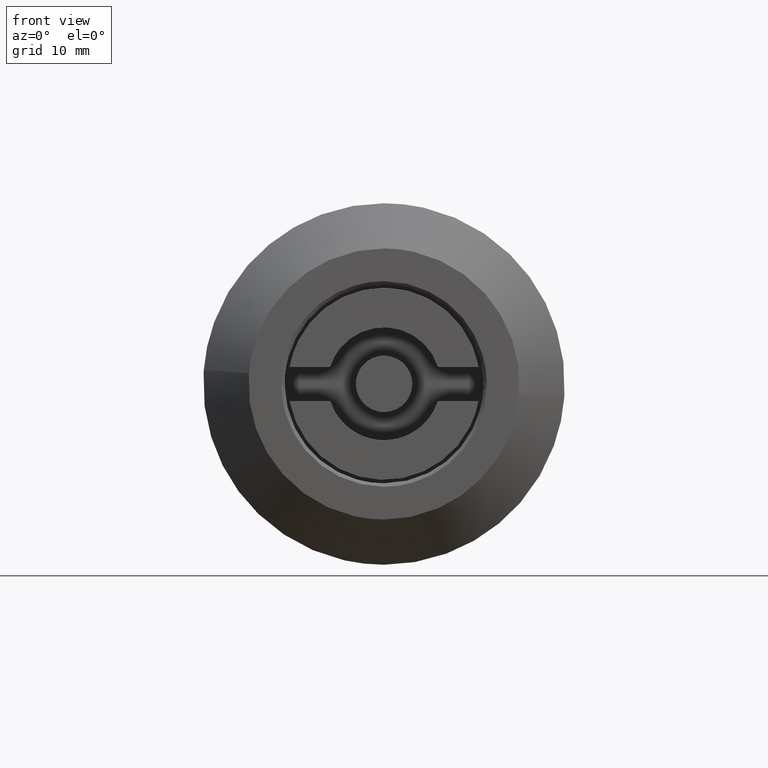
[diagram: clean part render]
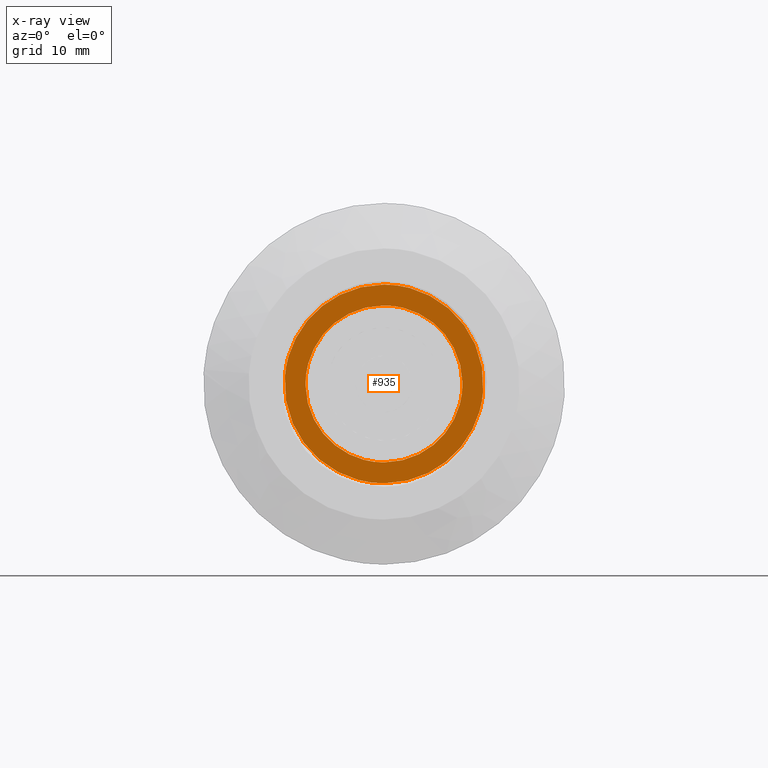
[diagram: x-ray — body ghosted, one internal face saturated and labeled with its STEP entity id]
A machine part, front view, then the same camera in x-ray: the body is ghosted and one INTERNAL B-rep face — a face not visible from any outside direction — is saturated and labeled: STEP entity #935.
In plain terms, the highlighted face is a freeform B-spline surface patch.
Its self-contained STEP definition (entity closure, byte-faithful):
#754=CARTESIAN_POINT('',(0.0,0.0,-8.800000000000029));
#755=VERTEX_POINT('',#754);
#756=CARTESIAN_POINT('',(8.772873521156672,8.937952E-013,-0.690427535394391));
#757=VERTEX_POINT('',#756);
#758=CARTESIAN_POINT('',(0.0,0.0,-8.800000000000029));
#759=CARTESIAN_POINT('',(8.134647959566470,4.466681E-013,-8.799999999999679));
#760=CARTESIAN_POINT('',(8.772873521156672,8.937952E-013,-0.690427535394391));
#768=(BOUNDED_CURVE()B_SPLINE_CURVE(2,(#758,#759,#760),.UNSPECIFIED.,.F.,.U.)B_SPLINE_CURVE_WITH_KNOTS((3,3),(0.0,0.236331545023443),.UNSPECIFIED.)CURVE()GEOMETRIC_REPRESENTATION_ITEM()RATIONAL_B_SPLINE_CURVE((1.0,0.723120372283709,0.969723866197073))REPRESENTATION_ITEM(''));
#769=EDGE_CURVE('',#755,#757,#768,.T.);
#778=CARTESIAN_POINT('',(-8.772873521156672,8.947993E-013,0.690427535394335));
#779=VERTEX_POINT('',#778);
#785=CARTESIAN_POINT('',(-8.772873521156672,8.947993E-013,0.690427535394335));
#786=CARTESIAN_POINT('',(-8.799999999991247,8.785617E-013,0.345746659141776));
#787=CARTESIAN_POINT('',(-8.799999999991423,8.609942E-013,-7.021683E-013));
#788=CARTESIAN_POINT('',(-8.799999999995880,4.138631E-013,-8.800000000000352));
#789=CARTESIAN_POINT('',(0.0,0.0,-8.800000000000029));
#797=(BOUNDED_CURVE()B_SPLINE_CURVE(2,(#785,#786,#787,#788,#789),.UNSPECIFIED.,.F.,.U.)B_SPLINE_CURVE_WITH_KNOTS((3,2,3),(0.736331545023443,0.750000000000000,1.0),.UNSPECIFIED.)CURVE()GEOMETRIC_REPRESENTATION_ITEM()RATIONAL_B_SPLINE_CURVE((0.969723866197073,0.983986408902838,1.0,0.707106781186548,1.0))REPRESENTATION_ITEM(''));
#798=EDGE_CURVE('',#779,#755,#797,.T.);
#821=CARTESIAN_POINT('',(0.0,0.0,8.799999999999972));
#822=VERTEX_POINT('',#821);
#823=CARTESIAN_POINT('',(8.772873521156672,8.937952E-013,-0.690427535394391));
#824=CARTESIAN_POINT('',(8.799999999991247,8.775530E-013,-0.345746659141832));
#825=CARTESIAN_POINT('',(8.799999999991423,8.599841E-013,6.461795E-013));
#826=CARTESIAN_POINT('',(8.799999999995880,4.128179E-013,8.800000000000296));
#827=CARTESIAN_POINT('',(0.0,0.0,8.799999999999972));
#835=(BOUNDED_CURVE()B_SPLINE_CURVE(2,(#823,#824,#825,#826,#827),.UNSPECIFIED.,.F.,.U.)B_SPLINE_CURVE_WITH_KNOTS((3,2,3),(0.236331545023443,0.250000000000000,0.500000000000000),.UNSPECIFIED.)CURVE()GEOMETRIC_REPRESENTATION_ITEM()RATIONAL_B_SPLINE_CURVE((0.969723866197073,0.983986408902838,1.0,0.707106781186548,1.0))REPRESENTATION_ITEM(''));
#836=EDGE_CURVE('',#757,#822,#835,.T.);
#838=CARTESIAN_POINT('',(0.0,0.0,8.799999999999972));
#839=CARTESIAN_POINT('',(-8.134647959566470,4.476291E-013,8.799999999999624));
#840=CARTESIAN_POINT('',(-8.772873521156672,8.947993E-013,0.690427535394335));
#848=(BOUNDED_CURVE()B_SPLINE_CURVE(2,(#838,#839,#840),.UNSPECIFIED.,.F.,.U.)B_SPLINE_CURVE_WITH_KNOTS((3,3),(0.500000000000000,0.736331545023443),.UNSPECIFIED.)CURVE()GEOMETRIC_REPRESENTATION_ITEM()RATIONAL_B_SPLINE_CURVE((1.0,0.723120372283709,0.969723866197073))REPRESENTATION_ITEM(''));
#849=EDGE_CURVE('',#822,#779,#848,.T.);
#858=CARTESIAN_POINT('',(-9.676434319644912,5.924911E-016,9.679119965887757));
#859=CARTESIAN_POINT('',(9.676434319644910,-5.924911E-016,9.679119965887757));
#860=CARTESIAN_POINT('',(-9.676434319644912,5.924911E-016,-9.679120437956600));
#861=CARTESIAN_POINT('',(9.676434319644910,-5.924911E-016,-9.679120437956600));
#862=B_SPLINE_SURFACE_WITH_KNOTS('',1,1,((#858,#860),(#859,#861)),.UNSPECIFIED.,.F.,.F.,.U.,(2,2),(2,2),(0.0,19.352868639289820),(0.0,19.358240403844359),.UNSPECIFIED.);
#863=ORIENTED_EDGE('',*,*,#798,.F.);
#864=ORIENTED_EDGE('',*,*,#849,.F.);
#865=ORIENTED_EDGE('',*,*,#836,.F.);
#866=ORIENTED_EDGE('',*,*,#769,.F.);
#867=EDGE_LOOP('',(#863,#864,#865,#866));
#868=FACE_OUTER_BOUND('',#867,.T.);
#869=CARTESIAN_POINT('',(0.0,0.0,-6.949964726600419));
#870=VERTEX_POINT('',#869);
#871=CARTESIAN_POINT('',(6.949725960741990,7.957114E-016,0.057608780142484));
#872=VERTEX_POINT('',#871);
#873=CARTESIAN_POINT('',(0.0,0.0,-6.949964726600419));
#874=CARTESIAN_POINT('',(6.949964726599358,1.800334E-016,-6.949964726600427));
#875=CARTESIAN_POINT('',(6.949964726598318,7.906561E-016,-4.410799E-014));
#876=CARTESIAN_POINT('',(6.949964726598313,7.931869E-016,0.028804884866753));
#877=CARTESIAN_POINT('',(6.949725960741990,7.957114E-016,0.057608780142484));
#885=(BOUNDED_CURVE()B_SPLINE_CURVE(2,(#873,#874,#875,#876,#877),.UNSPECIFIED.,.F.,.U.)B_SPLINE_CURVE_WITH_KNOTS((3,2,3),(0.500000000000000,0.750000000000000,0.751462829172280),.UNSPECIFIED.)CURVE()GEOMETRIC_REPRESENTATION_ITEM()RATIONAL_B_SPLINE_CURVE((1.0,0.707106781186548,1.0,0.998286189020626,0.996592434142824))REPRESENTATION_ITEM(''));
#886=EDGE_CURVE('',#870,#872,#885,.T.);
#887=ORIENTED_EDGE('',*,*,#886,.T.);
#888=CARTESIAN_POINT('',(0.0,0.0,6.949964726600362));
#889=VERTEX_POINT('',#888);
#890=CARTESIAN_POINT('',(6.949725960741990,7.957114E-016,0.057608780142484));
#891=CARTESIAN_POINT('',(6.892592741300087,1.885870E-016,6.949964726600356));
#892=CARTESIAN_POINT('',(0.0,0.0,6.949964726600362));
#900=(BOUNDED_CURVE()B_SPLINE_CURVE(2,(#890,#891,#892),.UNSPECIFIED.,.F.,.U.)B_SPLINE_CURVE_WITH_KNOTS((3,3),(0.751462829172280,1.0),.UNSPECIFIED.)CURVE()GEOMETRIC_REPRESENTATION_ITEM()RATIONAL_B_SPLINE_CURVE((0.996592434142824,0.708820592165921,1.0))REPRESENTATION_ITEM(''));
#901=EDGE_CURVE('',#872,#889,#900,.T.);
#902=ORIENTED_EDGE('',*,*,#901,.T.);
#903=CARTESIAN_POINT('',(-6.949725960741992,1.646779E-015,-0.057608780142532));
#904=VERTEX_POINT('',#903);
#905=CARTESIAN_POINT('',(0.0,0.0,6.949964726600362));
#906=CARTESIAN_POINT('',(-6.949964726599358,1.031131E-015,6.949964726600371));
#907=CARTESIAN_POINT('',(-6.949964726598318,1.641753E-015,-1.265942E-014));
#908=CARTESIAN_POINT('',(-6.949964726598314,1.644284E-015,-0.028804884866805));
#909=CARTESIAN_POINT('',(-6.949725960741993,1.646779E-015,-0.057608780142532));
#917=(BOUNDED_CURVE()B_SPLINE_CURVE(2,(#905,#906,#907,#908,#909),.UNSPECIFIED.,.F.,.U.)B_SPLINE_CURVE_WITH_KNOTS((3,2,3),(0.0,0.250000000000000,0.251462829172280),.UNSPECIFIED.)CURVE()GEOMETRIC_REPRESENTATION_ITEM()RATIONAL_B_SPLINE_CURVE((1.0,0.707106781186548,1.0,0.998286189020627,0.996592434142825))REPRESENTATION_ITEM(''));
#918=EDGE_CURVE('',#889,#904,#917,.T.);
#919=ORIENTED_EDGE('',*,*,#918,.T.);
#920=CARTESIAN_POINT('',(-6.949725960741993,1.646779E-015,-0.057608780142532));
#921=CARTESIAN_POINT('',(-6.892592741300096,1.032658E-015,-6.949964726600411));
#922=CARTESIAN_POINT('',(0.0,0.0,-6.949964726600419));
#930=(BOUNDED_CURVE()B_SPLINE_CURVE(2,(#920,#921,#922),.UNSPECIFIED.,.F.,.U.)B_SPLINE_CURVE_WITH_KNOTS((3,3),(0.251462829172280,0.500000000000000),.UNSPECIFIED.)CURVE()GEOMETRIC_REPRESENTATION_ITEM()RATIONAL_B_SPLINE_CURVE((0.996592434142825,0.708820592165921,1.0))REPRESENTATION_ITEM(''));
#931=EDGE_CURVE('',#904,#870,#930,.T.);
#932=ORIENTED_EDGE('',*,*,#931,.T.);
#933=EDGE_LOOP('',(#887,#902,#919,#932));
#934=FACE_BOUND('',#933,.T.);
#935=ADVANCED_FACE('',(#868,#934),#862,.T.);